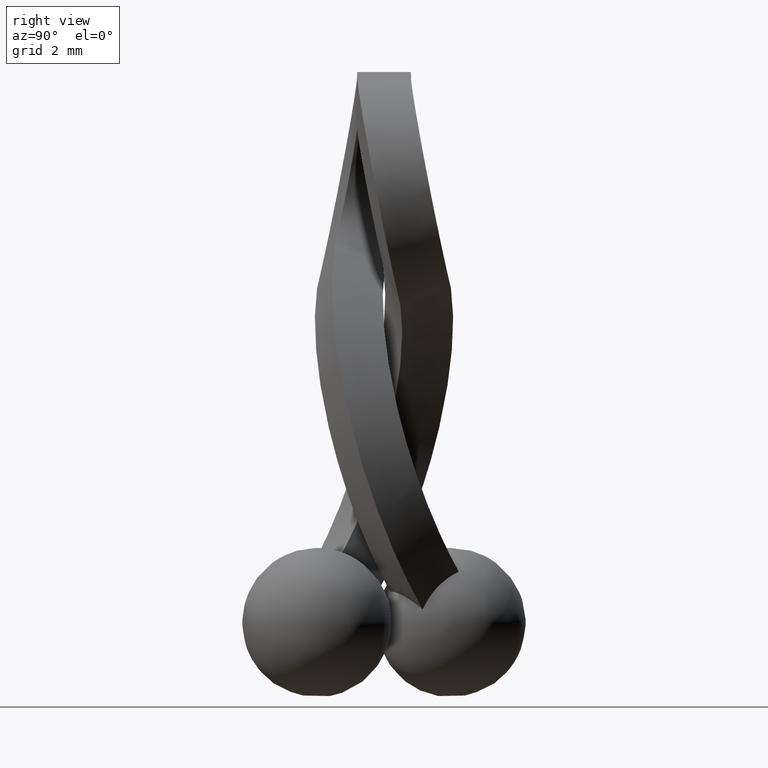
[diagram: clean part render]
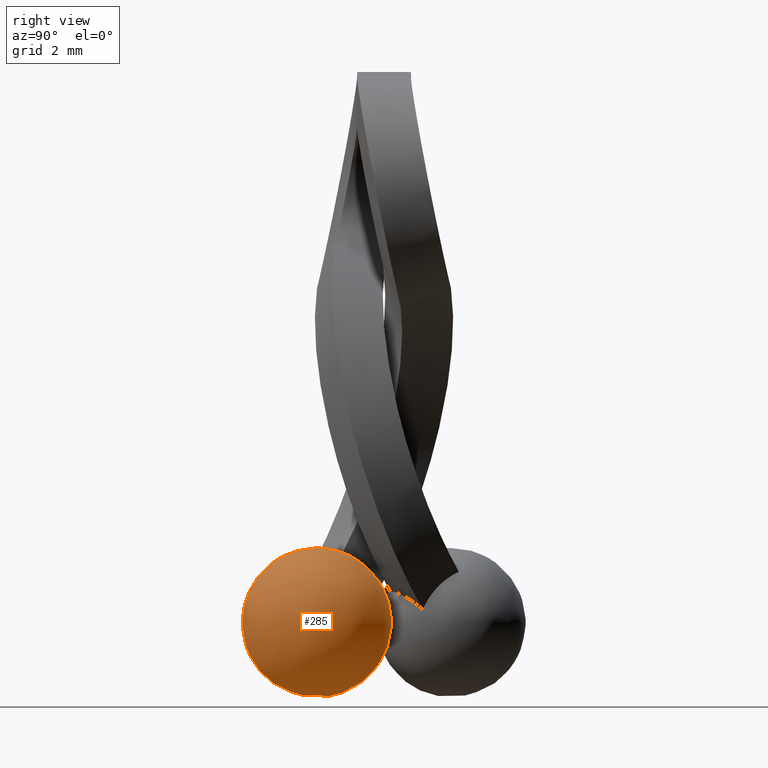
[diagram: same view with one face highlighted and labeled with its STEP entity id]
A machine part, right view. The second image highlights one B-rep face of the part: STEP entity #285.
In plain terms, the highlighted face is a freeform B-spline surface patch.
Its self-contained STEP definition (entity closure, byte-faithful):
#165=CARTESIAN_POINT('',(-0.864626455042929,-1.681470675697034,-12.933232040890349));
#166=CARTESIAN_POINT('',(-0.946780036344214,-1.691097246350139,-13.050322721492471));
#167=CARTESIAN_POINT('',(-1.073287386195241,-1.514956305809119,-13.387334873471760));
#168=CARTESIAN_POINT('',(-0.922324292112307,-1.047483710750605,-13.541264031710273));
#169=CARTESIAN_POINT('',(-0.663450183803981,-0.816412563906241,-13.337024176000652));
#170=CARTESIAN_POINT('',(-0.579218953646728,-0.803596191167395,-13.219390064758128));
#171=CARTESIAN_POINT('',(-0.885737748503274,-1.819089170911041,-12.907105601832260));
#172=CARTESIAN_POINT('',(-1.009895055428158,-1.889145858736940,-13.060973207758719));
#173=CARTESIAN_POINT('',(-1.294949316333291,-1.760128593091618,-13.672806484283447));
#174=CARTESIAN_POINT('',(-1.025350960208311,-0.925289827187569,-13.947701804049526));
#175=CARTESIAN_POINT('',(-0.611788048743544,-0.660114585107182,-13.463559056216075));
#176=CARTESIAN_POINT('',(-0.518798735363701,-0.689775003595910,-13.275054565545178));
#177=CARTESIAN_POINT('',(-0.781164974671811,-2.138689173527250,-12.695789437594426));
#178=CARTESIAN_POINT('',(-0.937886569051752,-2.527234731844284,-12.825236159323751));
#179=CARTESIAN_POINT('',(-4.198711349381528,-9.552456723312236,-18.684435572513969));
#180=CARTESIAN_POINT('',(-0.158520077177345,2.958407008140339,-22.804006951405629));
#181=CARTESIAN_POINT('',(-0.172521242098118,-0.158663916865361,-13.601272024950621));
#182=CARTESIAN_POINT('',(-0.227929235323380,-0.427213584678245,-13.254887091571211));
#183=CARTESIAN_POINT('',(-0.416336844290375,-2.138689173527250,-12.337991188054637));
#184=CARTESIAN_POINT('',(-0.283865660411110,-2.527234731844284,-12.183817593191305));
#185=CARTESIAN_POINT('',(5.637662995134642,-9.552456723312236,-9.037598530078888));
#186=CARTESIAN_POINT('',(9.677854267338825,2.958407008140339,-13.157169908970539));
#187=CARTESIAN_POINT('',(0.477133431466903,-0.158663916865361,-12.964135560819194));
#188=CARTESIAN_POINT('',(0.131891996841603,-0.427213584678245,-12.901999262221882));
#189=CARTESIAN_POINT('',(-0.202478321245356,-1.818268219685555,-12.237291280618516));
#190=CARTESIAN_POINT('',(-0.046293331037994,-1.887856733139386,-12.116272727724031));
#191=CARTESIAN_POINT('',(0.569174729218823,-1.758104764079708,-11.844040294989091));
#192=CARTESIAN_POINT('',(0.837793784266109,-0.926298503695727,-12.117937072750808));
#193=CARTESIAN_POINT('',(0.347730554393099,-0.661130937689784,-12.521377155717738));
#194=CARTESIAN_POINT('',(0.157781056192372,-0.690452625288790,-12.610827637871006));
#195=CARTESIAN_POINT('',(-0.176977444642984,-1.679647411288103,-12.259453802052398));
#196=CARTESIAN_POINT('',(-0.058796013691926,-1.688696529663737,-12.180070506784830));
#197=CARTESIAN_POINT('',(0.277998312194817,-1.512622962504226,-12.061439190791194));
#198=CARTESIAN_POINT('',(0.427832335788267,-1.048646649202055,-12.214217095002400));
#199=CARTESIAN_POINT('',(0.220960165348219,-0.818309108129782,-12.467505357007465));
#200=CARTESIAN_POINT('',(0.102510052238856,-0.805107277477349,-12.549271628795482));
#208=(BOUNDED_SURFACE()B_SPLINE_SURFACE(2,2,((#165,#171,#177,#183,#189,#195),(#166,#172,#178,#184,#190,#196),(#167,#173,#179,#185,#191,#197),(#168,#174,#180,#186,#192,#198),(#169,#175,#181,#187,#193,#199),(#170,#176,#182,#188,#194,#200)),.UNSPECIFIED.,.F.,.F.,.U.)B_SPLINE_SURFACE_WITH_KNOTS((3,1,1,1,3),(3,1,1,1,3),(0.0,2.439150571396064,5.311640015154843,8.184129458913622,10.661521469158110),(0.0,2.418765278689907,5.291254722448681,8.163744166207456,10.603178963568610),.UNSPECIFIED.)GEOMETRIC_REPRESENTATION_ITEM()RATIONAL_B_SPLINE_SURFACE(((52.724441081319412,40.947630447236918,26.961666399550989,26.961666399550989,41.002264586053293,52.926111292031322),(40.802621595777197,29.025810961694699,15.039846914008770,15.039846914008770,29.080445100511081,41.004291806489093),(26.762774681768430,14.985964047685931,1.0,1.0,15.040598186502310,26.964444892480330),(26.762774681768430,14.985964047685931,1.0,1.0,15.040598186502310,26.964444892480330),(40.903702231074661,29.126891596992159,15.140927549306230,15.140927549306230,29.181525735808538,41.105372441786557),(53.099611603070677,41.322800968988183,27.336836921302250,27.336836921302250,41.377435107804558,53.301281813782580)))REPRESENTATION_ITEM('')SURFACE());
#209=CARTESIAN_POINT('',(0.187365948330412,-0.197707666171950,-13.245755313469999));
#210=VERTEX_POINT('',#209);
#211=CARTESIAN_POINT('',(0.657491439051927,-1.417299756467276,-11.994778617612900));
#212=VERTEX_POINT('',#211);
#213=CARTESIAN_POINT('',(0.187365948330411,-0.197707666171949,-13.245755313469999));
#214=CARTESIAN_POINT('',(0.191825561108099,-0.267382023275011,-13.106048539562650));
#215=CARTESIAN_POINT('',(0.206212875228469,-0.345901673045128,-12.974420041253261));
#216=CARTESIAN_POINT('',(0.252517118538662,-0.520171432898224,-12.726562867938370));
#217=CARTESIAN_POINT('',(0.284441562416608,-0.615921915084131,-12.610335852671970));
#218=CARTESIAN_POINT('',(0.366018238235765,-0.825973442296277,-12.394248576698580));
#219=CARTESIAN_POINT('',(0.414286045230814,-0.936726671208481,-12.298061945655890));
#220=CARTESIAN_POINT('',(0.497286466168865,-1.110925992209072,-12.171055447944710));
#221=CARTESIAN_POINT('',(0.526742700382461,-1.170355930958676,-12.131606707625981));
#222=CARTESIAN_POINT('',(0.589372807412689,-1.291966412588508,-12.058598821255240));
#223=CARTESIAN_POINT('',(0.622638408444846,-1.354304698464043,-12.024980235827170));
#224=CARTESIAN_POINT('',(0.657491439051927,-1.417299756467276,-11.994778617612900));
#225=B_SPLINE_CURVE_WITH_KNOTS('',3,(#213,#214,#215,#216,#217,#218,#219,#220,#221,#222,#223,#224),.UNSPECIFIED.,.F.,.U.,(4,2,2,2,2,4),(0.0,0.250000000000000,0.500000000000000,0.750000000000000,0.875000000000000,1.0),.UNSPECIFIED.);
#226=EDGE_CURVE('',#210,#212,#225,.T.);
#227=ORIENTED_EDGE('',*,*,#226,.T.);
#228=CARTESIAN_POINT('',(-0.658760675943680,-2.505697120185635,-12.593247586821899));
#229=VERTEX_POINT('',#228);
#230=CARTESIAN_POINT('',(0.657491439051927,-1.417299756467276,-11.994778617612900));
#231=CARTESIAN_POINT('',(0.517134511926048,-1.484230831718313,-12.000588673705311));
#232=CARTESIAN_POINT('',(0.382323151591536,-1.558848614803807,-12.018079365642270));
#233=CARTESIAN_POINT('',(0.124303491285074,-1.722326315790740,-12.076559666338760));
#234=CARTESIAN_POINT('',(0.004076162121452,-1.809283263104518,-12.116843325796619));
#235=CARTESIAN_POINT('',(-0.163556995746135,-1.947324008507317,-12.193144119729700));
#236=CARTESIAN_POINT('',(-0.217299145937167,-1.994618738000339,-12.221239788024031));
#237=CARTESIAN_POINT('',(-0.320381121082496,-2.091893141079281,-12.282835618428230));
#238=CARTESIAN_POINT('',(-0.369862513124475,-2.142055584997199,-12.316477426704870));
#239=CARTESIAN_POINT('',(-0.508873642389854,-2.294118886800031,-12.423787011125290));
#240=CARTESIAN_POINT('',(-0.589896935699692,-2.398260327183845,-12.504172391878560));
#241=CARTESIAN_POINT('',(-0.658760675943680,-2.505697120185635,-12.593247586821899));
#242=B_SPLINE_CURVE_WITH_KNOTS('',3,(#230,#231,#232,#233,#234,#235,#236,#237,#238,#239,#240,#241),.UNSPECIFIED.,.F.,.U.,(4,2,2,2,2,4),(0.0,0.250000000000000,0.499999999999999,0.624999999999999,0.749999999999999,1.0),.UNSPECIFIED.);
#243=EDGE_CURVE('',#212,#229,#242,.T.);
#244=ORIENTED_EDGE('',*,*,#243,.T.);
#245=CARTESIAN_POINT('',(-1.116100666478800,-1.293284365072966,-13.853364843217561));
#246=VERTEX_POINT('',#245);
#247=CARTESIAN_POINT('',(-0.658760675943680,-2.505697120185635,-12.593247586821899));
#248=CARTESIAN_POINT('',(-0.730731597519901,-2.379526829644573,-12.650617825210590));
#249=CARTESIAN_POINT('',(-0.795125646128969,-2.257080742748775,-12.721777155207670));
#250=CARTESIAN_POINT('',(-0.908775698088030,-2.021215984243473,-12.891649275546969));
#251=CARTESIAN_POINT('',(-0.956590548615812,-1.910812032452782,-12.988138274306010));
#252=CARTESIAN_POINT('',(-1.015280246385595,-1.756066602300779,-13.149552433052071));
#253=CARTESIAN_POINT('',(-1.032650076272335,-1.706304717492311,-13.206156344108649));
#254=CARTESIAN_POINT('',(-1.055283627921291,-1.634429499729225,-13.295354766885181));
#255=CARTESIAN_POINT('',(-1.062256120670906,-1.610923940591520,-13.325825449259240));
#256=CARTESIAN_POINT('',(-1.074895368441600,-1.565340324494856,-13.387534583290829));
#257=CARTESIAN_POINT('',(-1.080584074906009,-1.543195549927880,-13.418852976041251));
#258=CARTESIAN_POINT('',(-1.105896766241600,-1.435629290669453,-13.577714109961370));
#259=CARTESIAN_POINT('',(-1.116235122617519,-1.359597105411823,-13.712001711876550));
#260=CARTESIAN_POINT('',(-1.116100666478800,-1.293284365072966,-13.853364843217561));
#261=B_SPLINE_CURVE_WITH_KNOTS('',3,(#247,#248,#249,#250,#251,#252,#253,#254,#255,#256,#257,#258,#259,#260),.UNSPECIFIED.,.F.,.U.,(4,2,2,2,2,2,4),(0.0,0.250000000000001,0.500000000000002,0.625000000000003,0.687500000000003,0.750000000000004,1.0),.UNSPECIFIED.);
#262=EDGE_CURVE('',#229,#246,#261,.T.);
#263=ORIENTED_EDGE('',*,*,#262,.T.);
#264=CARTESIAN_POINT('',(-1.116100666478800,-1.293284365072966,-13.853364843217561));
#265=CARTESIAN_POINT('',(-1.051939149386710,-1.184084527324290,-13.761739130561841));
#266=CARTESIAN_POINT('',(-0.975101844833864,-1.078532928553020,-13.679197981412040));
#267=CARTESIAN_POINT('',(-0.841521293309122,-0.924924080941385,-13.569271752839500));
#268=CARTESIAN_POINT('',(-0.793916599698335,-0.874516004852700,-13.534958756038350));
#269=CARTESIAN_POINT('',(-0.717758949630012,-0.800076888315602,-13.487157152708241));
#270=CARTESIAN_POINT('',(-0.691503831554263,-0.775394316801432,-13.471797919685431));
#271=CARTESIAN_POINT('',(-0.637937746768737,-0.726931430986019,-13.442644929944910));
#272=CARTESIAN_POINT('',(-0.610592293438438,-0.703111769414878,-13.428823073083979));
#273=CARTESIAN_POINT('',(-0.471107238251255,-0.586022609372301,-13.363435469588890));
#274=CARTESIAN_POINT('',(-0.350783818659769,-0.498700792684005,-13.322944776868320));
#275=CARTESIAN_POINT('',(-0.157135748750858,-0.377261716198525,-13.280070135765010));
#276=CARTESIAN_POINT('',(-0.090092124171693,-0.338249544083643,-13.268755335018909));
#277=CARTESIAN_POINT('',(0.046537282812526,-0.264730582817628,-13.252546318848120));
#278=CARTESIAN_POINT('',(0.116245415395587,-0.230121547297511,-13.247595765745590));
#279=CARTESIAN_POINT('',(0.187365948330412,-0.197707666171950,-13.245755313469999));
#280=B_SPLINE_CURVE_WITH_KNOTS('',3,(#264,#265,#266,#267,#268,#269,#270,#271,#272,#273,#274,#275,#276,#277,#278,#279),.UNSPECIFIED.,.F.,.U.,(4,2,2,2,2,2,2,4),(0.0,0.250000000000001,0.375000000000001,0.437500000000002,0.500000000000002,0.750000000000001,0.875000000000000,1.0),.UNSPECIFIED.);
#281=EDGE_CURVE('',#246,#210,#280,.T.);
#282=ORIENTED_EDGE('',*,*,#281,.T.);
#283=EDGE_LOOP('',(#227,#244,#263,#282));
#284=FACE_OUTER_BOUND('',#283,.T.);
#285=ADVANCED_FACE('',(#284),#208,.T.);